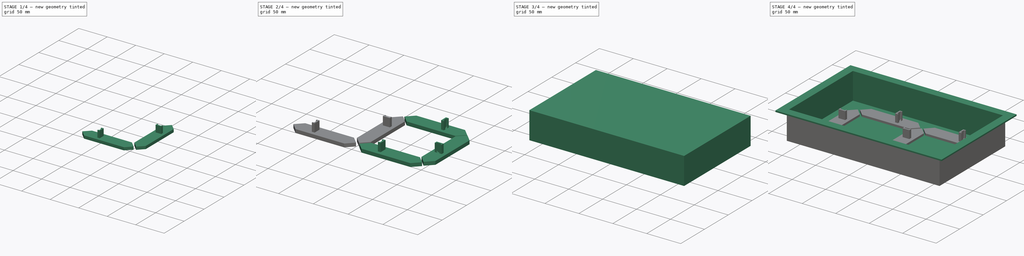
[diagram: build sequence overview — one tinted view per stage of 4, left to right]
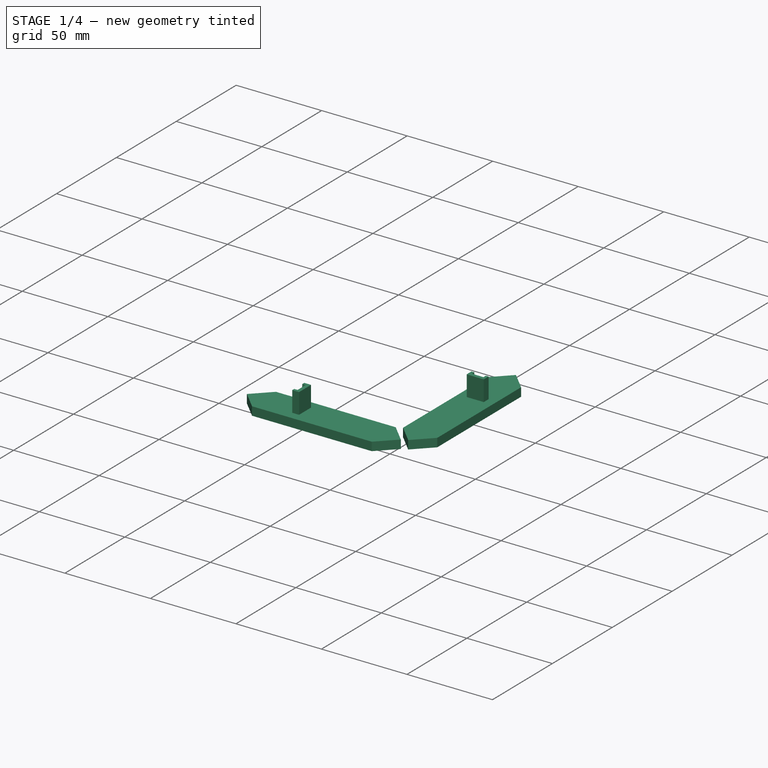
[diagram: stage 1 of 4 — iso view after this stage's code; geometry added in this stage tinted green]
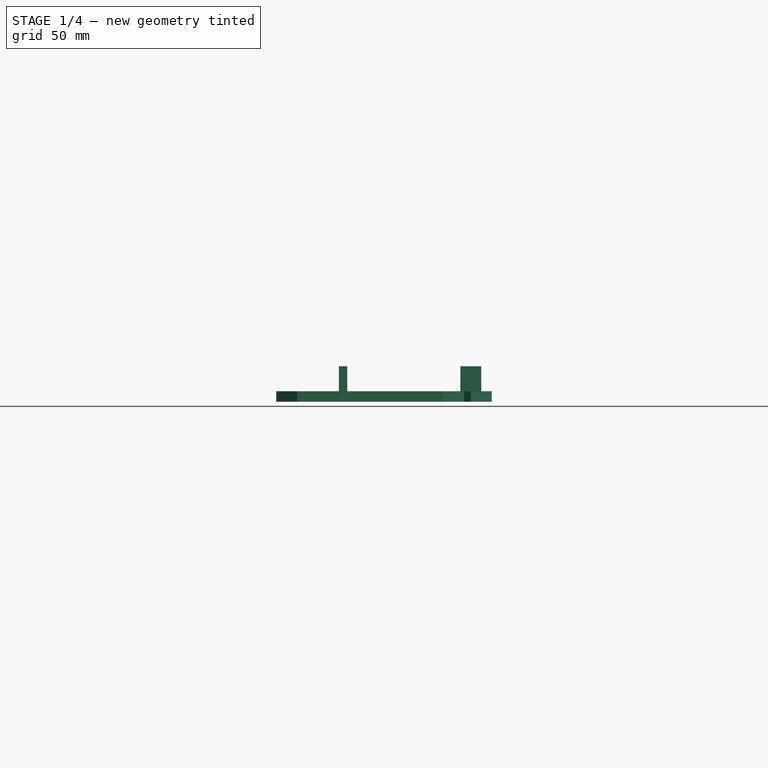
[diagram: stage 1 of 4 — front view after this stage's code; geometry added in this stage tinted green]
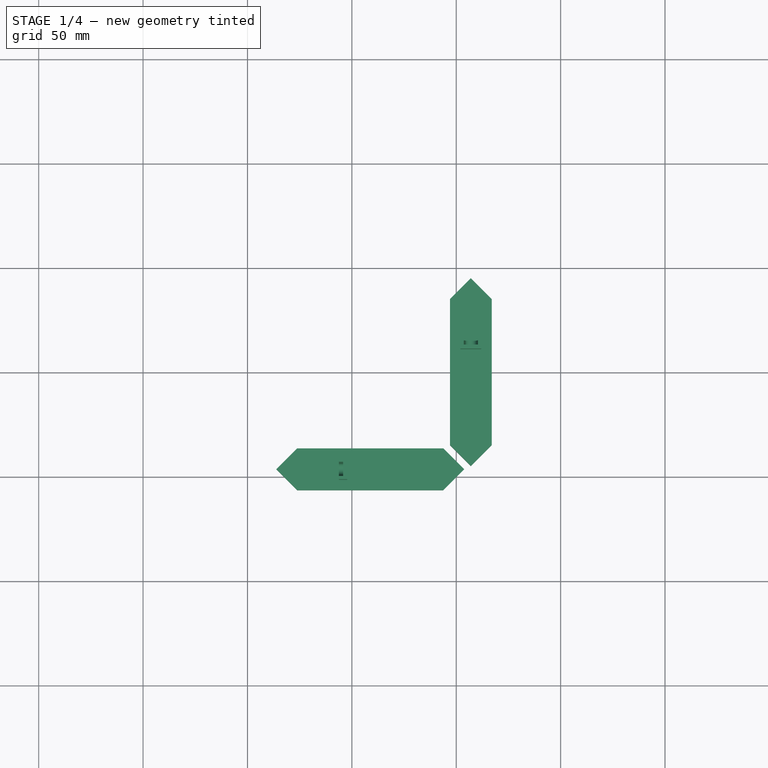
[diagram: stage 1 of 4 — top view after this stage's code; geometry added in this stage tinted green]
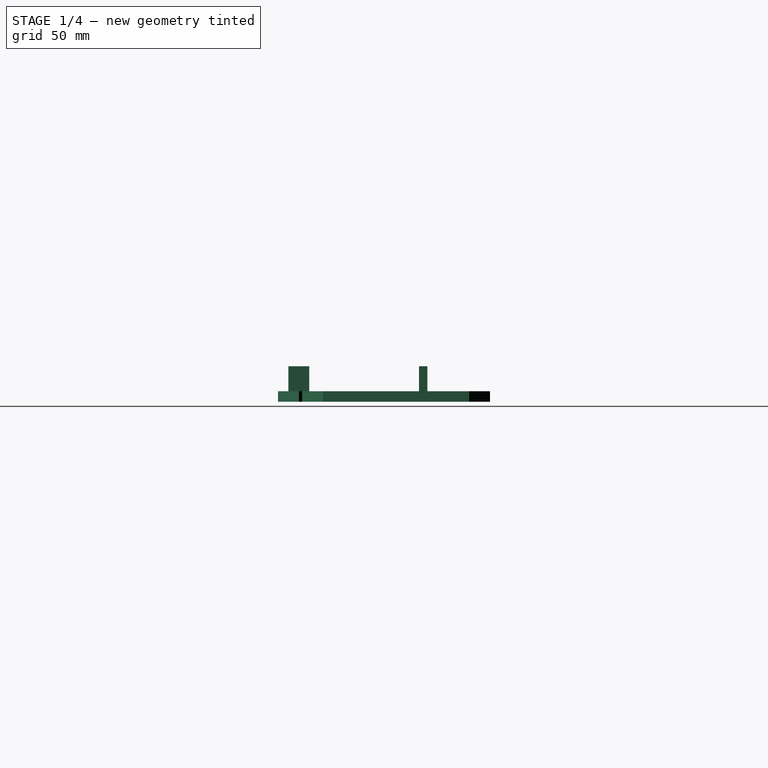
[diagram: stage 1 of 4 — right view after this stage's code; geometry added in this stage tinted green]
FCSTD DOCUMENT  (FreeCAD 0.20R29603 (Git))
Label: Digito1_Caixa
License: All rights reserved
LicenseURL: http://en.wikipedia.org/wiki/All_rights_reserved
objects: Part::FeaturePython×7, Sketcher::SketchObject×4, PartDesign::Plane×3, PartDesign::Pad×2, PartDesign::Pocket×1, PartDesign::Body×1, App::LinkGroup×1
note: 21 computed .brp shape members not serialized (recipe doc carries the construction recipe); baked Part::Feature solids carry a one-line shape summary decoded from their .brp

FEATURE [Part::FeaturePython] b_Segment_V1_001_005  label="Segment_V1_006"  # a2plus imported part (geometry in sourceFile) (typed FeaturePython)
  Placement = pos=(-41.2028,-46.3147,0) rot=(0,0,1;0rad)
  a2p_Version = 0.4.60i
  fixedPosition = false
  objectType = a2pPart
  sourceFile = ./Segment_V1.FCStd
  subassemblyImport = false
  timeLastImport = 1.67449e+09
  updateColors = true
FEATURE [Part::FeaturePython] b_Segment_V1_001_006  label="Segment_V1_007"  # a2plus imported part (geometry in sourceFile) (typed FeaturePython)
  Placement = pos=(7,0.25,0) rot=(0,0,1;4.71239rad)
  a2p_Version = 0.4.60i
  fixedPosition = false
  objectType = a2pPart
  sourceFile = ./Segment_V1.FCStd
  subassemblyImport = false
  timeLastImport = 1.67449e+09
  updateColors = true
FEATURE [App::LinkGroup] LinkGroup
  ElementList = -> [b_Segment_V1_001_,b_Segment_V1_001_001,b_Segment_V1_001_002,b_Segment_V1_001_003,b_Segment_V1_001_004,b_Segment_V1_001_005,b_Segment_V1_001_006]
  LinkMode = 0
  Placement = pos=(-6,7.45058e-07,0) rot=(0,0,1;0rad)
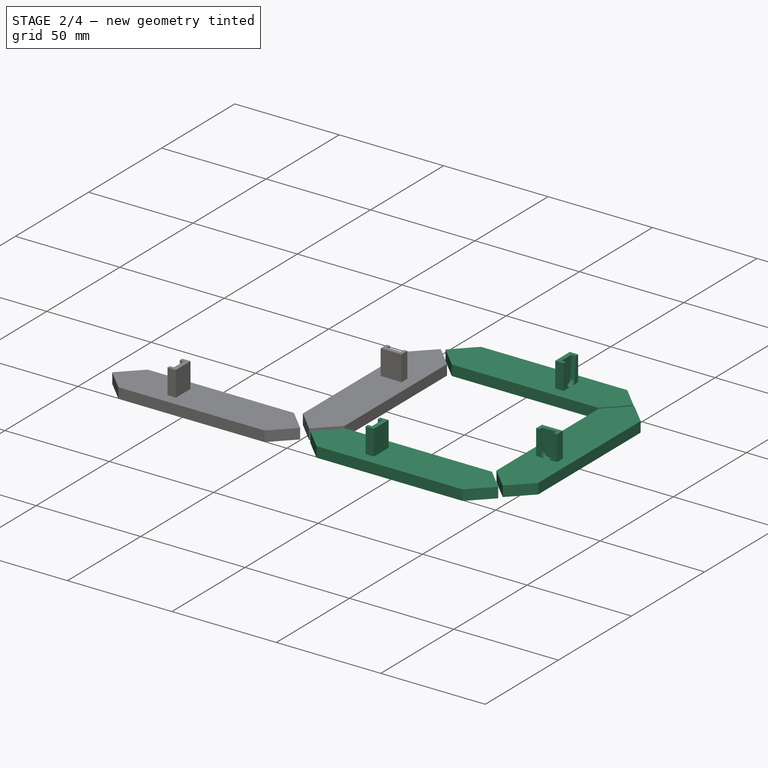
[diagram: stage 2 of 4 — iso view after this stage's code; geometry added in this stage tinted green]
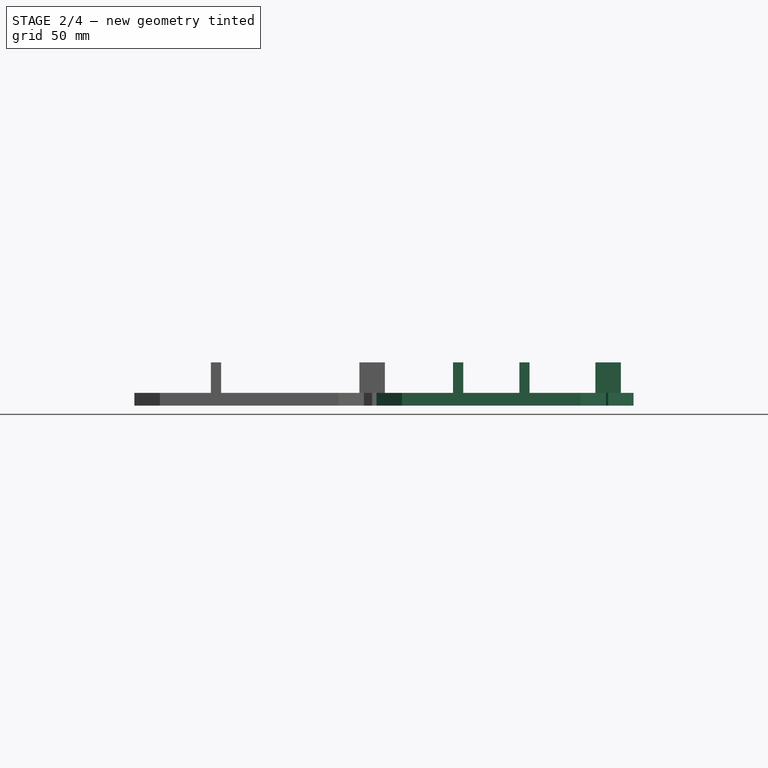
[diagram: stage 2 of 4 — front view after this stage's code; geometry added in this stage tinted green]
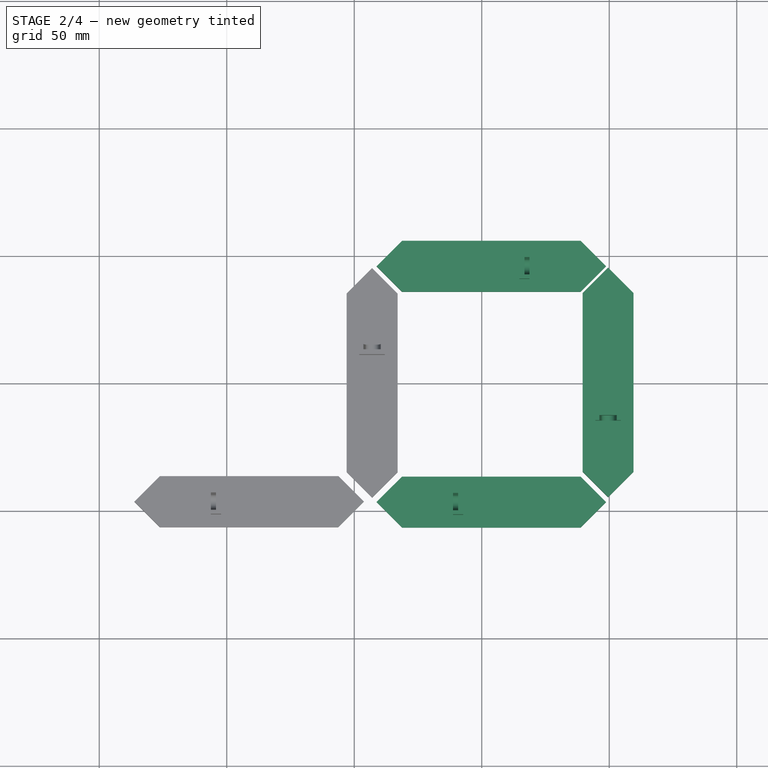
[diagram: stage 2 of 4 — top view after this stage's code; geometry added in this stage tinted green]
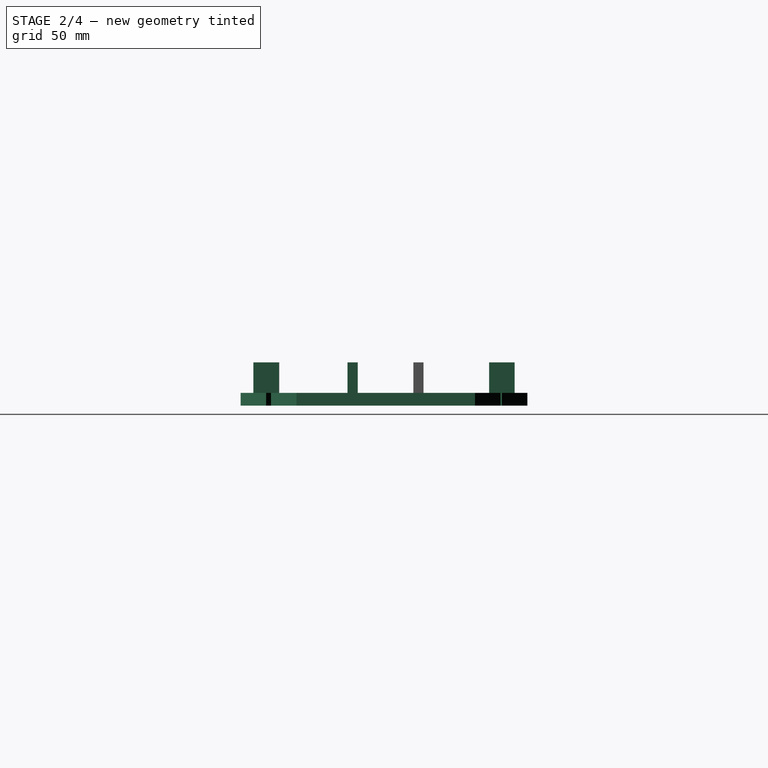
[diagram: stage 2 of 4 — right view after this stage's code; geometry added in this stage tinted green]
FEATURE [Part::FeaturePython] b_Segment_V1_001_002  label="Segment_V1_003"  # a2plus imported part (geometry in sourceFile) (typed FeaturePython)
  Placement = pos=(53.75,46,0) rot=(0,0,1;3.14159rad)
  a2p_Version = 0.4.60i
  fixedPosition = false
  objectType = a2pPart
  sourceFile = ./Segment_V1.FCStd
  subassemblyImport = false
  timeLastImport = 1.67449e+09
  updateColors = true
FEATURE [Part::FeaturePython] b_Segment_V1_001_003  label="Segment_V1_004"  # a2plus imported part (geometry in sourceFile) (typed FeaturePython)
  Placement = pos=(99.5435,0.436648,0) rot=(0,0,1;1.5708rad)
  a2p_Version = 0.4.60i
  fixedPosition = false
  objectType = a2pPart
  sourceFile = ./Segment_V1.FCStd
  subassemblyImport = false
  timeLastImport = 1.67449e+09
  updateColors = true
FEATURE [Part::FeaturePython] b_Segment_V1_001_004  label="Segment_V1_005"  # a2plus imported part (geometry in sourceFile) (typed FeaturePython)
  Placement = pos=(53.75,-46.5,0) rot=(0,0,1;0rad)
  a2p_Version = 0.4.60i
  fixedPosition = false
  objectType = a2pPart
  sourceFile = ./Segment_V1.FCStd
  subassemblyImport = false
  timeLastImport = 1.67449e+09
  updateColors = true
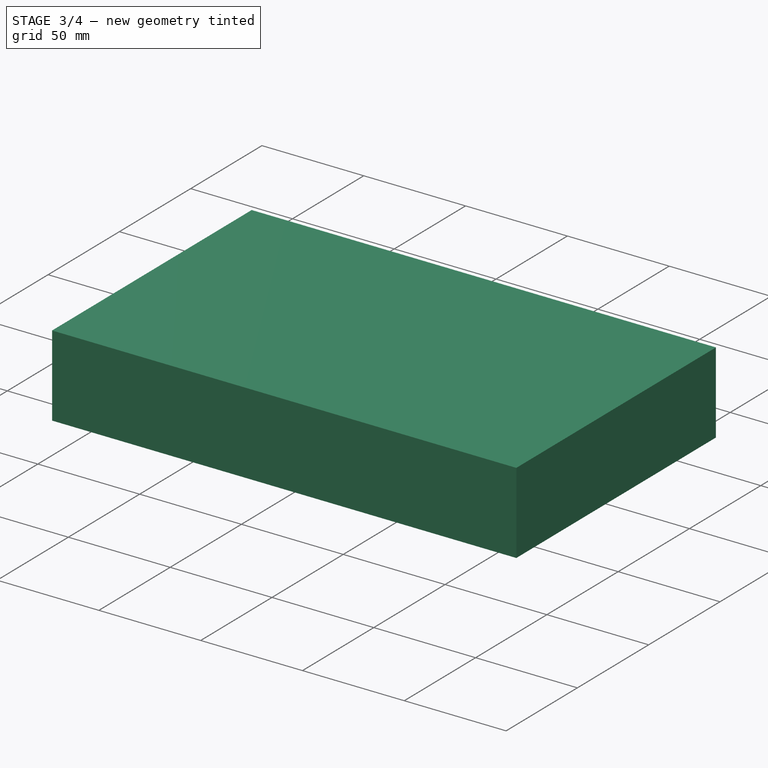
[diagram: stage 3 of 4 — iso view after this stage's code; geometry added in this stage tinted green]
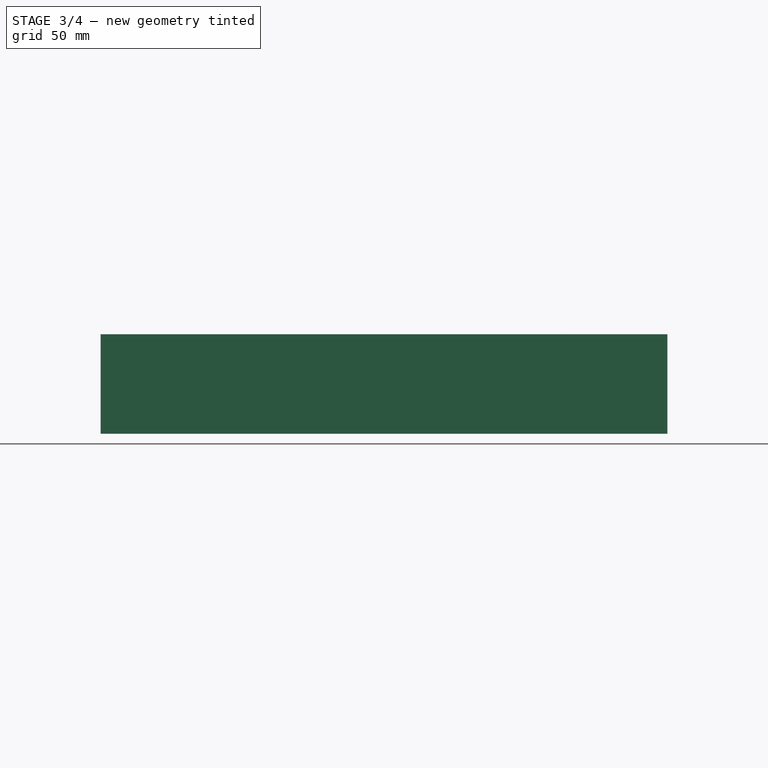
[diagram: stage 3 of 4 — front view after this stage's code; geometry added in this stage tinted green]
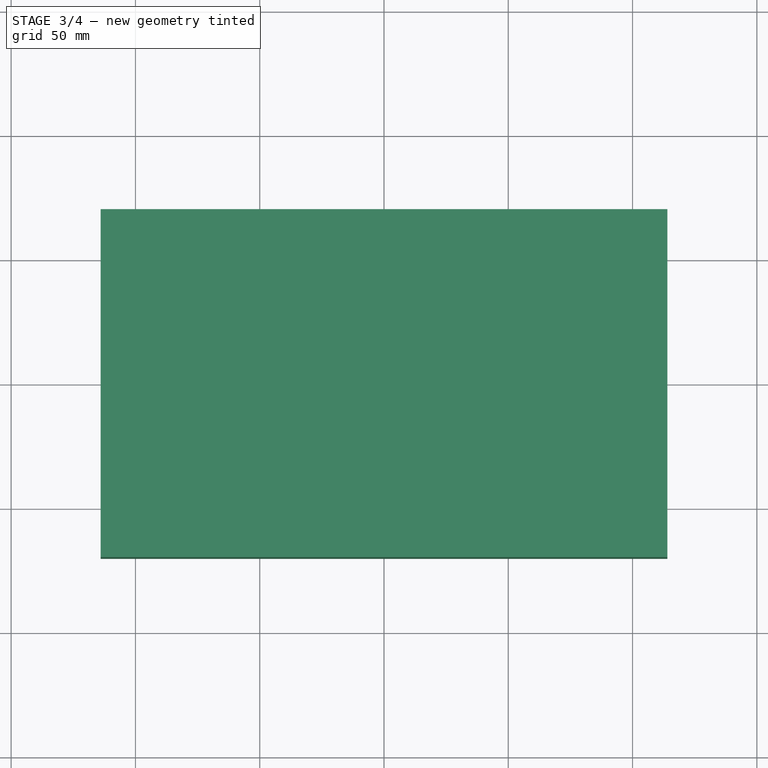
[diagram: stage 3 of 4 — top view after this stage's code; geometry added in this stage tinted green]
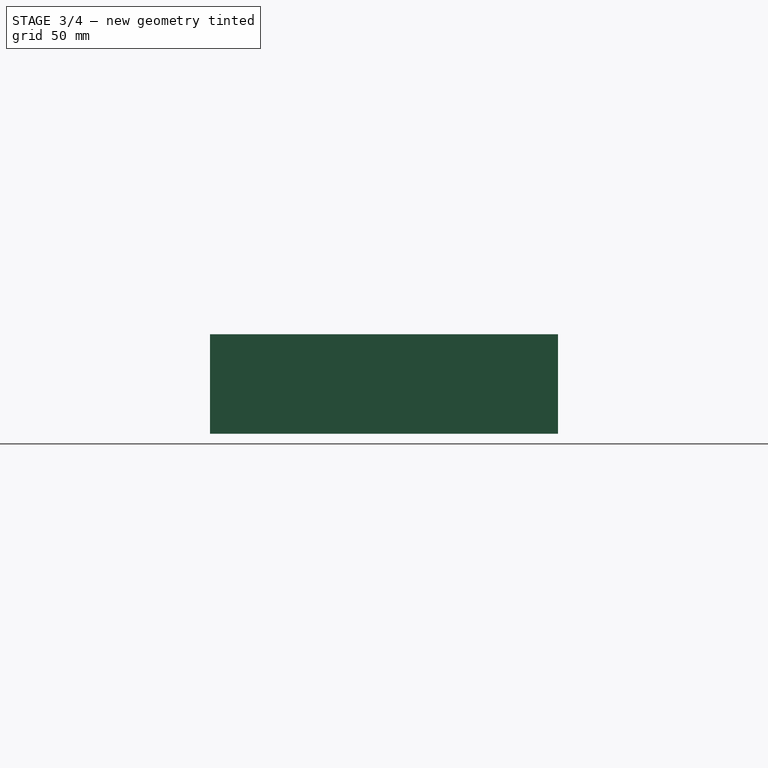
[diagram: stage 3 of 4 — right view after this stage's code; geometry added in this stage tinted green]
FEATURE [Sketcher::SketchObject] Sketch
  FullyConstrained = true
  MapMode = 5
  Support = -> [XY_Plane]
  sketch-geometry (4):
    g0: LineSegment StartX=-114 StartY=70 StartZ=0 EndX=114 EndY=70 EndZ=0
    g1: LineSegment StartX=114 StartY=70 StartZ=0 EndX=114 EndY=-70 EndZ=0
    g2: LineSegment StartX=114 StartY=-70 StartZ=0 EndX=-114 EndY=-70 EndZ=0
    g3: LineSegment StartX=-114 StartY=-70 StartZ=0 EndX=-114 EndY=70 EndZ=0
  constraints (10):
    c: Coincident(g0,g1)
    c: Coincident(g1,g2)
    c: Coincident(g2,g3)
    c: Coincident(g3,g0)
    c: Horizontal(g2)
    c: Vertical(g1)
    c: Symmetric(g0,g2,g-1)
    c: Symmetric(g0,g0,g-2)
    c: DistanceX(g0,g0) = 228
    c: DistanceY(g1,g0) = 140
FEATURE [PartDesign::Pad] Pad  label="CorpoExterno"
  Direction = (0,0,1)
  Length = 40
  Length2 = 10
  Profile = -> Sketch
  ReferenceAxis = -> Sketch [N_Axis]
  Type = 0
FEATURE [PartDesign::Plane] DatumPlane002  label="PlanoSuporteServos"
  Length = 60
  MapMode = 5
  Placement = pos=(0,0,2) rot=(0,0,1;0rad)
  ResizeMode = 0
  Support = -> [Pocket]
  Width = 60
FEATURE [Sketcher::SketchObject] Sketch003
  FullyConstrained = true
  MapMode = 5
  Placement = pos=(0,0,2) rot=(0,0,1;0rad)
  Support = -> [DatumPlane002]
FEATURE [PartDesign::Body] Body
  Group = -> [Sketch,Pad,DatumPlane,Sketch001,Pad001,DatumPlane001,Sketch002,Pocket,DatumPlane002,Sketch003]
  Origin = -> Origin
  Tip = -> Pocket
FEATURE [Part::FeaturePython] b_Segment_V1_001_  label="Segment_V1_001"  # a2plus imported part (geometry in sourceFile) (typed FeaturePython)
  Placement = pos=(-88.75,0.25,0) rot=(0,0,1;4.71239rad)
  a2p_Version = 0.4.60i
  fixedPosition = true
  objectType = a2pPart
  sourceFile = ./Segment_V1.FCStd
  subassemblyImport = false
  timeLastImport = 1.67449e+09
  updateColors = true
FEATURE [Part::FeaturePython] b_Segment_V1_001_001  label="Segment_V1_002"  # a2plus imported part (geometry in sourceFile) (typed FeaturePython)
  Placement = pos=(-41,46,0) rot=(0,0,1;3.14159rad)
  a2p_Version = 0.4.60i
  fixedPosition = false
  objectType = a2pPart
  sourceFile = ./Segment_V1.FCStd
  subassemblyImport = false
  timeLastImport = 1.67449e+09
  updateColors = true
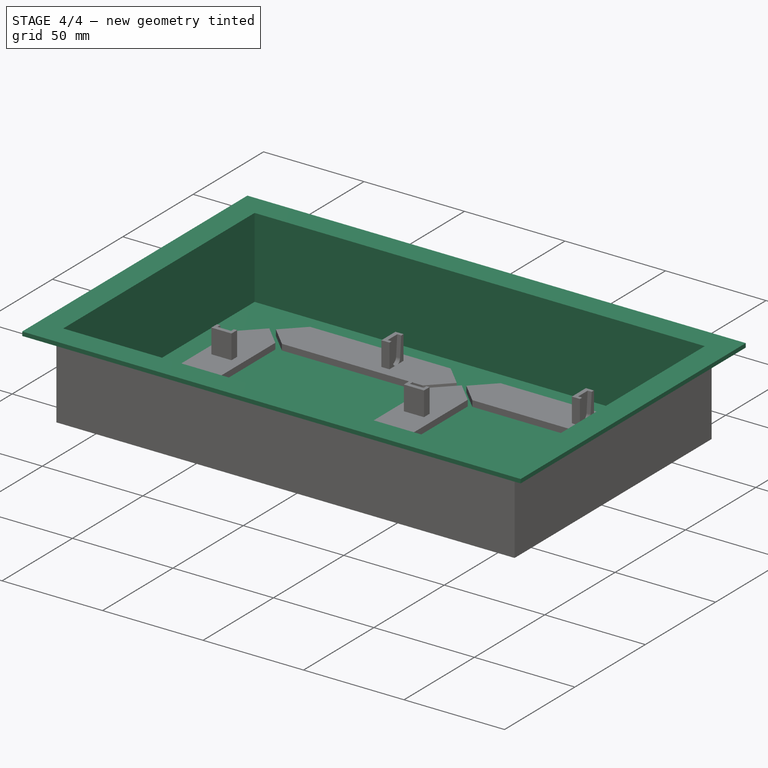
[diagram: stage 4 of 4 — iso view after this stage's code; geometry added in this stage tinted green]
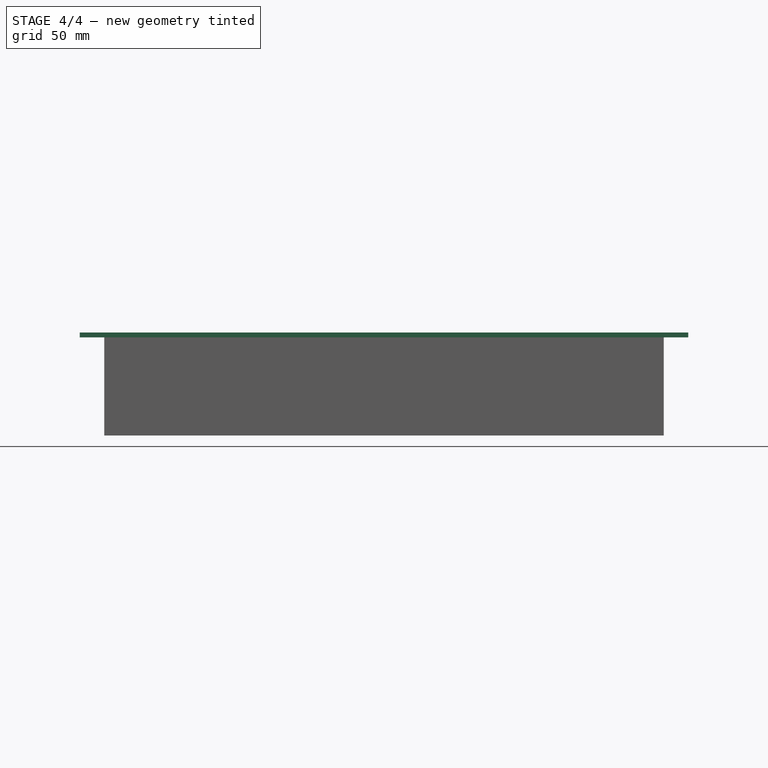
[diagram: stage 4 of 4 — front view after this stage's code; geometry added in this stage tinted green]
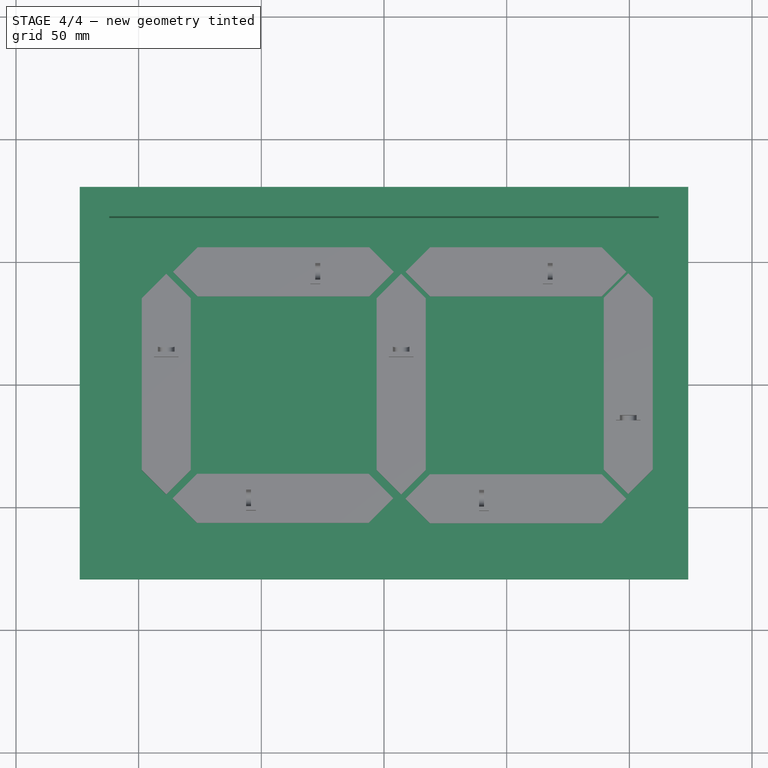
[diagram: stage 4 of 4 — top view after this stage's code; geometry added in this stage tinted green]
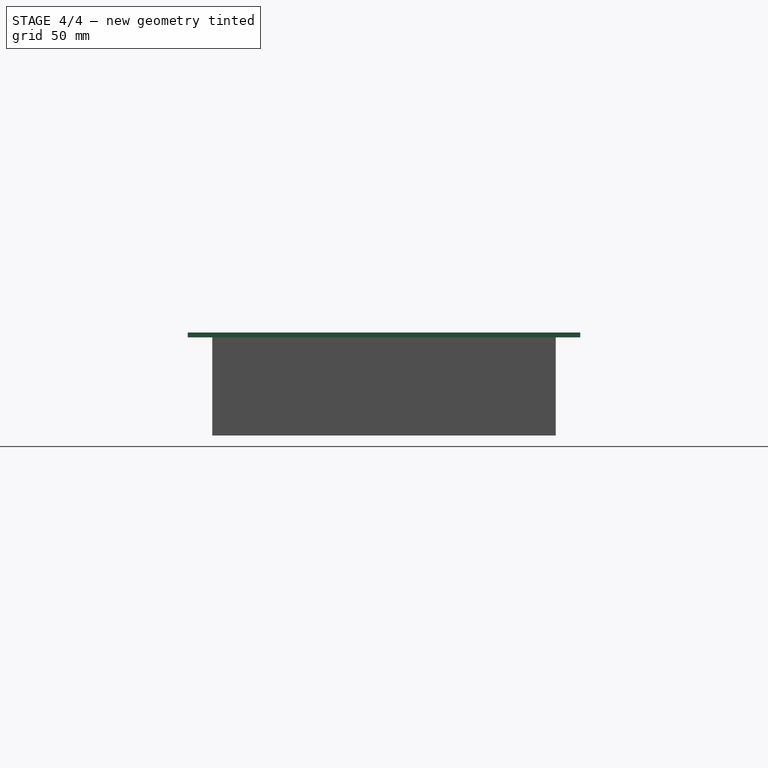
[diagram: stage 4 of 4 — right view after this stage's code; geometry added in this stage tinted green]
FEATURE [PartDesign::Plane] DatumPlane  label="PlanoAba"
  Length = 60
  MapMode = 5
  Placement = pos=(0,0,40) rot=(0,0,1;0rad)
  ResizeMode = 0
  Support = -> [Pad]
  Width = 60
FEATURE [Sketcher::SketchObject] Sketch001
  FullyConstrained = true
  MapMode = 5
  Placement = pos=(0,0,40) rot=(0,0,1;0rad)
  Support = -> [DatumPlane]
  sketch-geometry (4):
    g0: LineSegment StartX=-124 StartY=80 StartZ=0 EndX=124 EndY=80 EndZ=0
    g1: LineSegment StartX=124 StartY=80 StartZ=0 EndX=124 EndY=-80 EndZ=0
    g2: LineSegment StartX=124 StartY=-80 StartZ=0 EndX=-124 EndY=-80 EndZ=0
    g3: LineSegment StartX=-124 StartY=-80 StartZ=0 EndX=-124 EndY=80 EndZ=0
  constraints (10):
    c: Coincident(g0,g1)
    c: Coincident(g1,g2)
    c: Coincident(g2,g3)
    c: Coincident(g3,g0)
    c: Horizontal(g2)
    c: Vertical(g1)
    c: Symmetric(g0,g2,g-1)
    c: Symmetric(g0,g0,g-2)
    c: DistanceY(g2,g0) = 160
    c: DistanceX(g0,g0) = 248
FEATURE [PartDesign::Pad] Pad001  label="Aba"
  BaseFeature = -> Pad
  Direction = (0,0,1)
  Length = 2
  Length2 = 10
  Profile = -> Sketch001
  ReferenceAxis = -> Sketch001 [N_Axis]
  Type = 0
FEATURE [PartDesign::Plane] DatumPlane001  label="PlanoCorpoInterno"
  Length = 60
  MapMode = 5
  Placement = pos=(0,0,42) rot=(0,0,1;0rad)
  ResizeMode = 0
  Support = -> [Pad001]
  Width = 60
FEATURE [Sketcher::SketchObject] Sketch002
  FullyConstrained = true
  MapMode = 5
  Placement = pos=(0,0,42) rot=(0,0,1;0rad)
  Support = -> [DatumPlane001]
  sketch-geometry (4):
    g0: LineSegment StartX=-112 StartY=68 StartZ=0 EndX=112 EndY=68 EndZ=0
    g1: LineSegment StartX=112 StartY=68 StartZ=0 EndX=112 EndY=-68 EndZ=0
    g2: LineSegment StartX=112 StartY=-68 StartZ=0 EndX=-112 EndY=-68 EndZ=0
    g3: LineSegment StartX=-112 StartY=-68 StartZ=0 EndX=-112 EndY=68 EndZ=0
  constraints (10):
    c: Coincident(g0,g1)
    c: Coincident(g1,g2)
    c: Coincident(g2,g3)
    c: Coincident(g3,g0)
    c: Horizontal(g2)
    c: Vertical(g1)
    c: Symmetric(g0,g2,g-1)
    c: Symmetric(g0,g0,g-2)
    c: DistanceY(g2,g0) = 136
    c: DistanceX(g0,g0) = 224
FEATURE [PartDesign::Pocket] Pocket  label="CorpoInterno"
  BaseFeature = -> Pad001
  Direction = (0,0,-1)
  Length = 40
  Length2 = 5
  Profile = -> Sketch002
  ReferenceAxis = -> Sketch002 [N_Axis]
  Type = 0
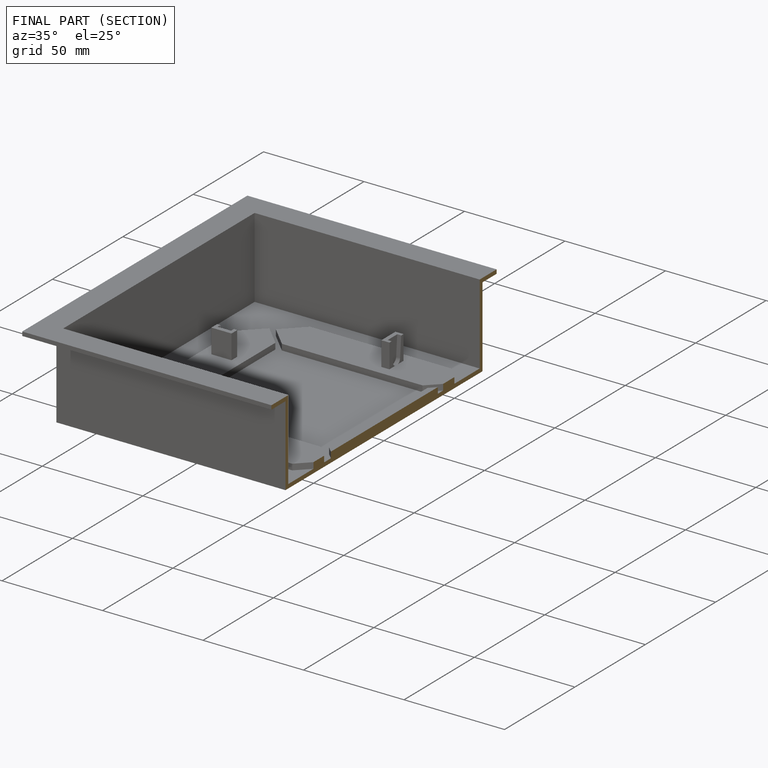
[diagram: finished part — half-section view (interior)]
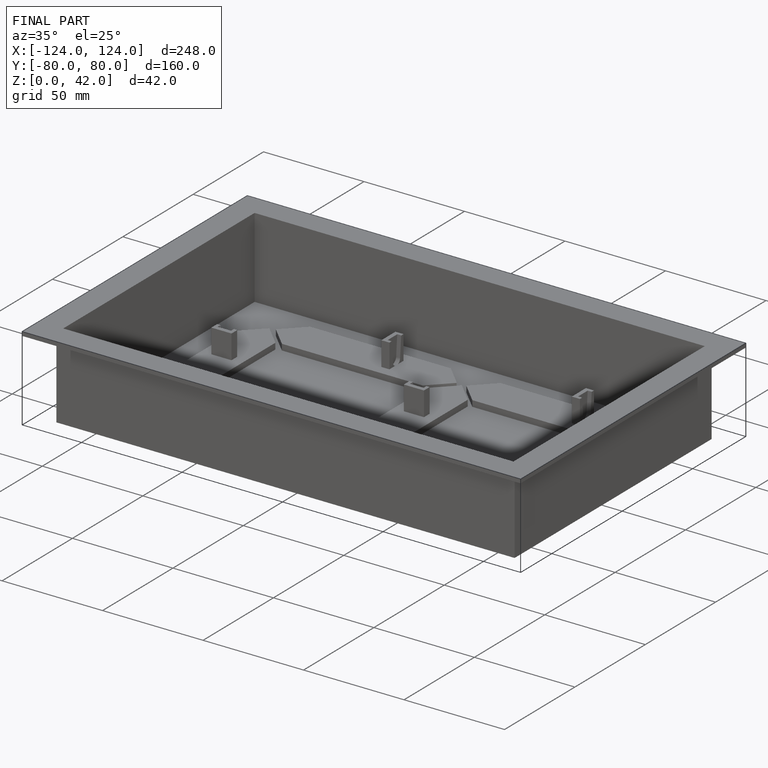
[diagram: finished part — iso view with bounding-box wireframe]
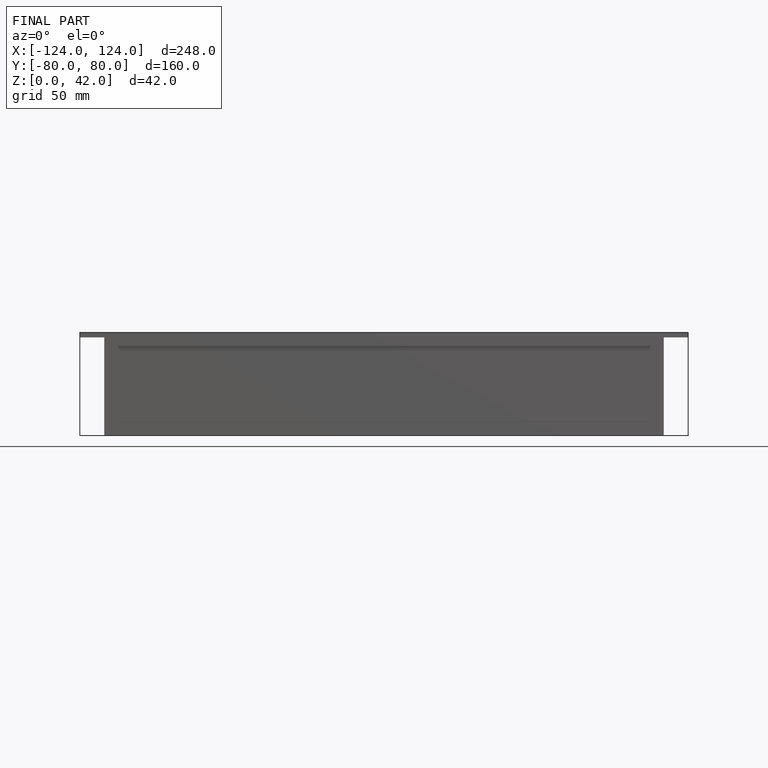
[diagram: finished part — front view with bounding-box wireframe]
